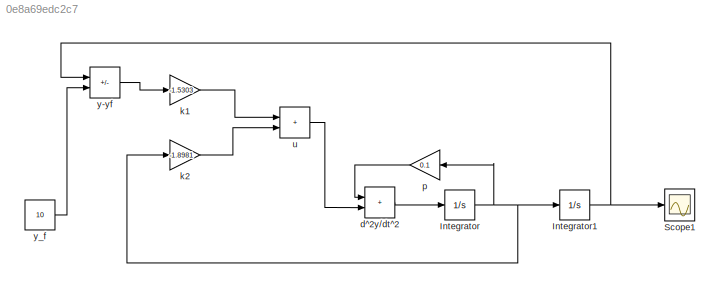
MODEL slx_0e8a69edc2c7
KIND model
CONFIG AbsTol = auto
CONFIG EnableMultiTasking = off
CONFIG FixedStep = auto
CONFIG MaxStep = auto
CONFIG MinStep = auto
CONFIG RelTol = 1e-3
CONFIG SampleTimeConstraint = Unconstrained
CONFIG Solver = VariableStepAuto
CONFIG SolverName = VariableStepAuto
CONFIG StartTime = 0.0
CONFIG StopTime = 10.0
BLOCK [Integrator] Integrator
  Ports = [1, 1]
BLOCK [Integrator] Integrator1
  Ports = [1, 1]
BLOCK [Scope] Scope1
  Floating = off
  NumInputPorts = 1
  Ports = [1]
  ScopeSpecificationString = Simulink.scopes.TimeScopeBlockCfg('CurrentConfiguration', extmgr.ConfigurationSet(extmgr.Configuration('Core','General UI',true),extmgr.Configuration('Core','Source UI',true),extmgr.Configuration('Sources','WiredSimulink',true,'DataLoggingVariableName','ScopeData1'),extmgr.Configuration('Visuals','Time Domain',true,'SerializedDisplays',{struct('MinYLimReal','-1.29494','MaxYLimReal','11.65442','YLa...<+1403ch>
BLOCK [Sum] d^2y//dt^2
  IconShape = rectangular
  Ports = [2, 1]
BLOCK [Gain] k1
  Gain = -1.5303
BLOCK [Gain] k2
  Gain = -1.8981
BLOCK [Gain] p
  Gain = 0.1
BLOCK [Sum] u
  IconShape = rectangular
  Ports = [2, 1]
BLOCK [Sum] y-yf
  IconShape = rectangular
  Inputs = +-
  Ports = [2, 1]
BLOCK [Constant] y_f
  Value = 10
NET Integrator1:1 -> Scope1:1, y-yf:1
NET Integrator:1 -> Integrator1:1, k2:1, p:1
LINE d^2y//dt^2:1 -> Integrator:1
LINE k1:1 -> u:1
LINE k2:1 -> u:2
LINE p:1 -> d^2y//dt^2:1
LINE u:1 -> d^2y//dt^2:2
LINE y-yf:1 -> k1:1
LINE y_f:1 -> y-yf:2
note: NET lines group one-source signal fan-out (src -> all destinations, sorted); 1:1 wires keep LINE
